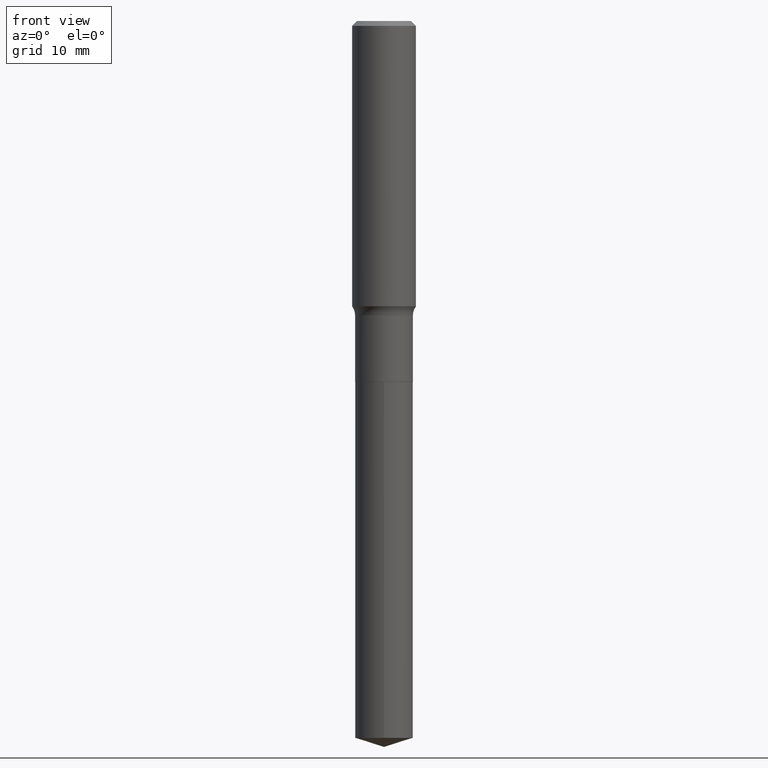
[diagram: clean part render]
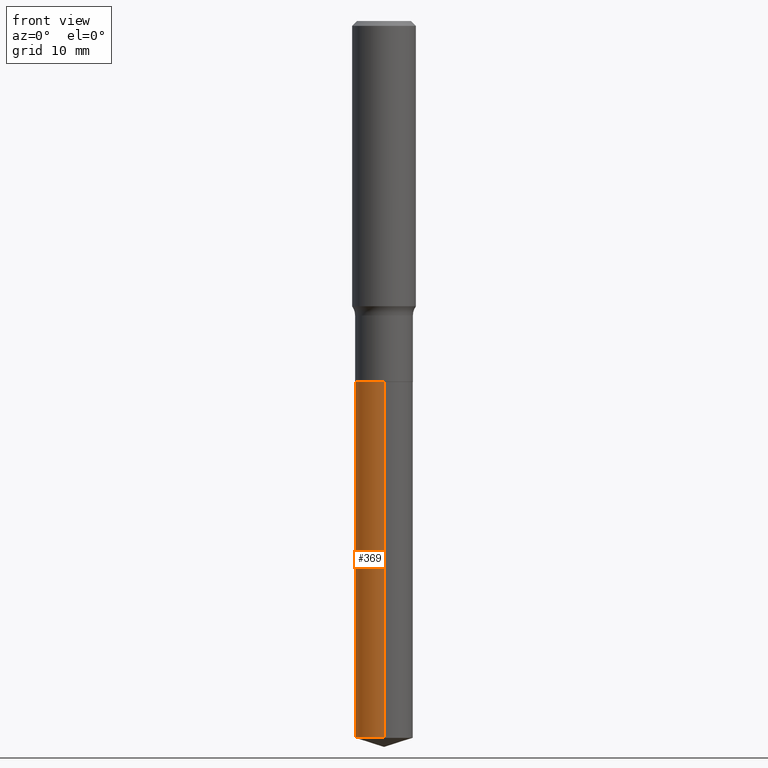
[diagram: same view with one face highlighted and labeled with its STEP entity id]
A machine part, front view. The second image highlights one B-rep face of the part: STEP entity #369.
In plain terms, the highlighted cylindrical surface (edge-blend (fillet) strip) has radius 3.6246 mm, axis along (-0, 0, 1).
Its self-contained STEP definition (entity closure, byte-faithful):
#18 = CARTESIAN_POINT ( 'NONE',  ( -9.964687741057865457E-16, -0.1427000000000062108, -1.781499999999999861 ) ) ;
#20 = LINE ( 'NONE', #55, #121 ) ;
#25 = VERTEX_POINT ( 'NONE', #134 ) ;
#26 = CARTESIAN_POINT ( 'NONE',  ( 4.356602678218821524E-29, -6.220074005149064918E-15, -1.781500000000000306 ) ) ;
#47 = CIRCLE ( 'NONE', #218, 0.1426999999999999935 ) ;
#55 = CARTESIAN_POINT ( 'NONE',  ( 1.013944483929706307E-15, 0.1426999999999937763, -1.781500000000000972 ) ) ;
#92 = DIRECTION ( 'NONE',  ( -2.445500656237034607E-29, 3.491435727756035230E-15, 1.000000000000000000 ) ) ;
#102 = CARTESIAN_POINT ( 'NONE',  ( 1.013944483929749694E-15, 0.1426999999999937763, -1.781500000000000972 ) ) ;
#108 = EDGE_LOOP ( 'NONE', ( #126, #282, #249, #128 ) ) ;
#121 = VECTOR ( 'NONE', #211, 39.37007874015748143 ) ;
#126 = ORIENTED_EDGE ( 'NONE', *, *, #311, .F. ) ;
#128 = ORIENTED_EDGE ( 'NONE', *, *, #451, .F. ) ;
#134 = CARTESIAN_POINT ( 'NONE',  ( -9.964687741057865457E-16, -0.1427000000000062108, -1.781499999999999861 ) ) ;
#167 = CARTESIAN_POINT ( 'NONE',  ( 1.013944483929749694E-15, 0.1426999999999876700, -3.537706862826970333 ) ) ;
#200 = CARTESIAN_POINT ( 'NONE',  ( 8.651407713750158819E-29, -1.235175739135348952E-14, -3.537706862826969889 ) ) ;
#211 = DIRECTION ( 'NONE',  ( -2.445500656237034327E-29, 3.491435727756035230E-15, 1.000000000000000000 ) ) ;
#216 = CARTESIAN_POINT ( 'NONE',  ( -9.964687741057439472E-16, -0.1427000000000123725, -3.537706862826969445 ) ) ;
#218 = AXIS2_PLACEMENT_3D ( 'NONE', #200, #351, #276 ) ;
#249 = ORIENTED_EDGE ( 'NONE', *, *, #251, .T. ) ;
#251 = EDGE_CURVE ( 'NONE', #454, #25, #388, .T. ) ;
#274 = CIRCLE ( 'NONE', #335, 0.1426999999999999935 ) ;
#276 = DIRECTION ( 'NONE',  ( -6.982962677686265922E-15, -1.000000000000000000, 3.828798869886843840E-15 ) ) ;
#282 = ORIENTED_EDGE ( 'NONE', *, *, #347, .T. ) ;
#310 = VERTEX_POINT ( 'NONE', #102 ) ;
#311 = EDGE_CURVE ( 'NONE', #358, #310, #20, .T. ) ;
#319 = FACE_OUTER_BOUND ( 'NONE', #108, .T. ) ;
#322 = AXIS2_PLACEMENT_3D ( 'NONE', #476, #92, #387 ) ;
#323 = DIRECTION ( 'NONE',  ( -2.445500656237034327E-29, 3.491435727756035230E-15, 1.000000000000000000 ) ) ;
#335 = AXIS2_PLACEMENT_3D ( 'NONE', #26, #486, #485 ) ;
#347 = EDGE_CURVE ( 'NONE', #358, #454, #47, .T. ) ;
#351 = DIRECTION ( 'NONE',  ( -2.445500656237034607E-29, 3.491435727756035230E-15, 1.000000000000000000 ) ) ;
#358 = VERTEX_POINT ( 'NONE', #167 ) ;
#359 = CYLINDRICAL_SURFACE ( 'NONE', #322, 0.1426999999999999935 ) ;
#369 = ADVANCED_FACE ( 'NONE', ( #319 ), #359, .T. ) ;
#387 = DIRECTION ( 'NONE',  ( -6.982962677686265922E-15, -1.000000000000000000, 3.828798869886843840E-15 ) ) ;
#388 = LINE ( 'NONE', #18, #417 ) ;
#417 = VECTOR ( 'NONE', #323, 39.37007874015748143 ) ;
#451 = EDGE_CURVE ( 'NONE', #310, #25, #274, .T. ) ;
#454 = VERTEX_POINT ( 'NONE', #216 ) ;
#476 = CARTESIAN_POINT ( 'NONE',  ( 4.356602678218821524E-29, -6.220074005149064918E-15, -1.781500000000000306 ) ) ;
#485 = DIRECTION ( 'NONE',  ( -6.982962677686265922E-15, -1.000000000000000000, 3.828798869886843840E-15 ) ) ;
#486 = DIRECTION ( 'NONE',  ( -2.445500656237034607E-29, 3.491435727756035230E-15, 1.000000000000000000 ) ) ;